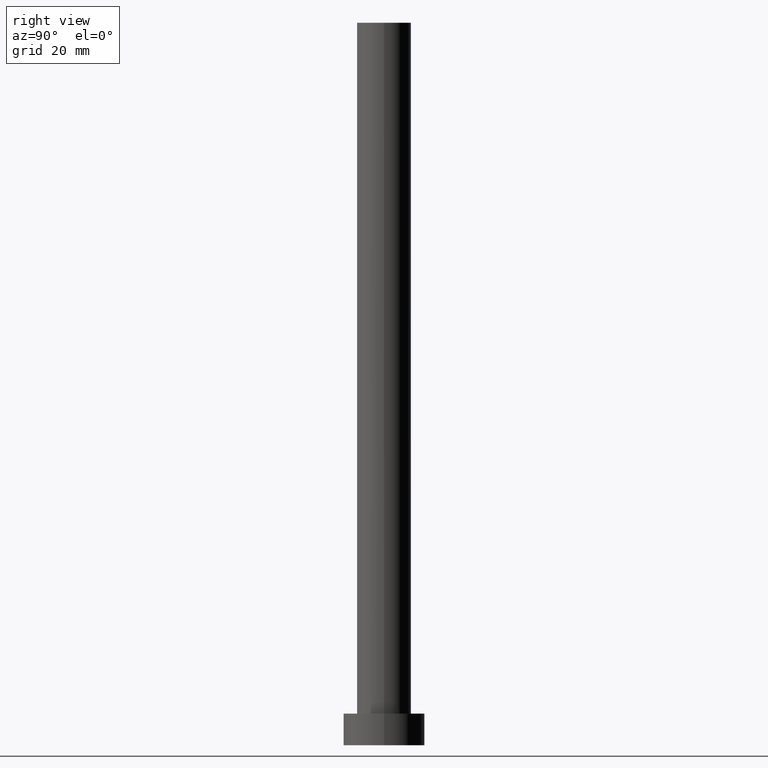
[diagram: clean part render]
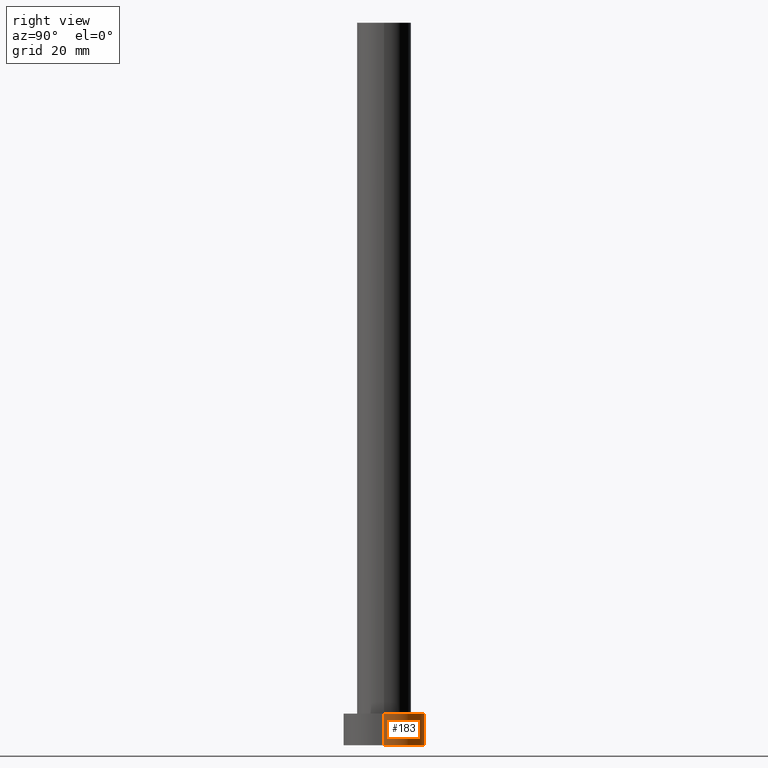
[diagram: same view with one face highlighted and labeled with its STEP entity id]
A machine part, right view. The second image highlights one B-rep face of the part: STEP entity #183.
In plain terms, the highlighted cylindrical surface (partial cylindrical patch) has radius 9 mm, axis along (-0, -0, -1).
Its self-contained STEP definition (entity closure, byte-faithful):
#7 = DIRECTION ( 'NONE',  ( 0.000000000000000000, 0.000000000000000000, 1.000000000000000000 ) ) ;
#11 = CARTESIAN_POINT ( 'NONE',  ( 9.000000000000000000, 1.102182119232617714E-15, 7.000000000000000000 ) ) ;
#17 = ORIENTED_EDGE ( 'NONE', *, *, #205, .F. ) ;
#21 = CIRCLE ( 'NONE', #177, 9.000000000000000000 ) ;
#23 = CARTESIAN_POINT ( 'NONE',  ( -9.000000000000000000, 0.000000000000000000, 7.000000000000000000 ) ) ;
#25 = CARTESIAN_POINT ( 'NONE',  ( 0.000000000000000000, 0.000000000000000000, 7.000000000000000000 ) ) ;
#26 = DIRECTION ( 'NONE',  ( -0.000000000000000000, -0.000000000000000000, -1.000000000000000000 ) ) ;
#36 = EDGE_LOOP ( 'NONE', ( #230, #246, #109, #17 ) ) ;
#37 = CARTESIAN_POINT ( 'NONE',  ( 9.000000000000000000, 1.102182119232617714E-15, 7.000000000000000000 ) ) ;
#46 = LINE ( 'NONE', #23, #125 ) ;
#71 = CARTESIAN_POINT ( 'NONE',  ( 9.000000000000000000, 1.102182119232617714E-15, 0.000000000000000000 ) ) ;
#76 = CARTESIAN_POINT ( 'NONE',  ( -9.000000000000000000, 0.000000000000000000, 0.000000000000000000 ) ) ;
#79 = DIRECTION ( 'NONE',  ( -0.000000000000000000, -0.000000000000000000, -1.000000000000000000 ) ) ;
#104 = VERTEX_POINT ( 'NONE', #227 ) ;
#109 = ORIENTED_EDGE ( 'NONE', *, *, #161, .T. ) ;
#118 = CIRCLE ( 'NONE', #217, 9.000000000000000000 ) ;
#125 = VECTOR ( 'NONE', #158, 1000.000000000000000 ) ;
#135 = CARTESIAN_POINT ( 'NONE',  ( 0.000000000000000000, 0.000000000000000000, 0.000000000000000000 ) ) ;
#136 = CARTESIAN_POINT ( 'NONE',  ( 0.000000000000000000, 0.000000000000000000, 7.000000000000000000 ) ) ;
#146 = VERTEX_POINT ( 'NONE', #76 ) ;
#158 = DIRECTION ( 'NONE',  ( -0.000000000000000000, -0.000000000000000000, -1.000000000000000000 ) ) ;
#159 = DIRECTION ( 'NONE',  ( -1.000000000000000000, 0.000000000000000000, 0.000000000000000000 ) ) ;
#160 = EDGE_CURVE ( 'NONE', #191, #243, #173, .T. ) ;
#161 = EDGE_CURVE ( 'NONE', #243, #146, #21, .T. ) ;
#165 = DIRECTION ( 'NONE',  ( 1.000000000000000000, 0.000000000000000000, 0.000000000000000000 ) ) ;
#171 = VECTOR ( 'NONE', #26, 1000.000000000000000 ) ;
#173 = LINE ( 'NONE', #37, #171 ) ;
#177 = AXIS2_PLACEMENT_3D ( 'NONE', #135, #7, #201 ) ;
#180 = CYLINDRICAL_SURFACE ( 'NONE', #254, 9.000000000000000000 ) ;
#183 = ADVANCED_FACE ( 'NONE', ( #184 ), #180, .T. ) ;
#184 = FACE_OUTER_BOUND ( 'NONE', #36, .T. ) ;
#186 = DIRECTION ( 'NONE',  ( 0.000000000000000000, 0.000000000000000000, 1.000000000000000000 ) ) ;
#191 = VERTEX_POINT ( 'NONE', #11 ) ;
#201 = DIRECTION ( 'NONE',  ( 1.000000000000000000, 0.000000000000000000, 0.000000000000000000 ) ) ;
#205 = EDGE_CURVE ( 'NONE', #104, #146, #46, .T. ) ;
#217 = AXIS2_PLACEMENT_3D ( 'NONE', #25, #186, #165 ) ;
#219 = EDGE_CURVE ( 'NONE', #191, #104, #118, .T. ) ;
#227 = CARTESIAN_POINT ( 'NONE',  ( -9.000000000000000000, 0.000000000000000000, 7.000000000000000000 ) ) ;
#230 = ORIENTED_EDGE ( 'NONE', *, *, #219, .F. ) ;
#243 = VERTEX_POINT ( 'NONE', #71 ) ;
#246 = ORIENTED_EDGE ( 'NONE', *, *, #160, .T. ) ;
#254 = AXIS2_PLACEMENT_3D ( 'NONE', #136, #79, #159 ) ;